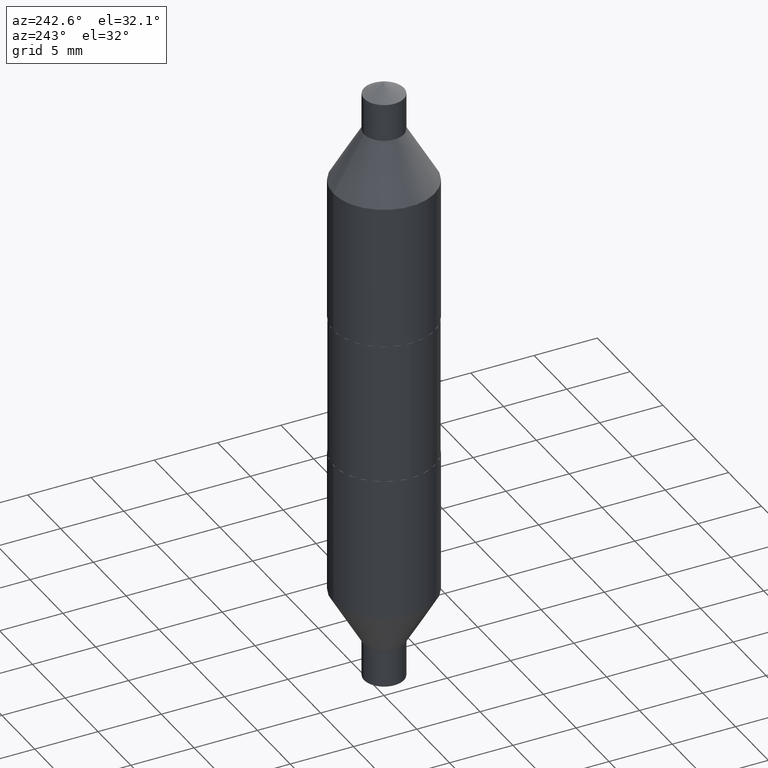
[diagram: clean part render]
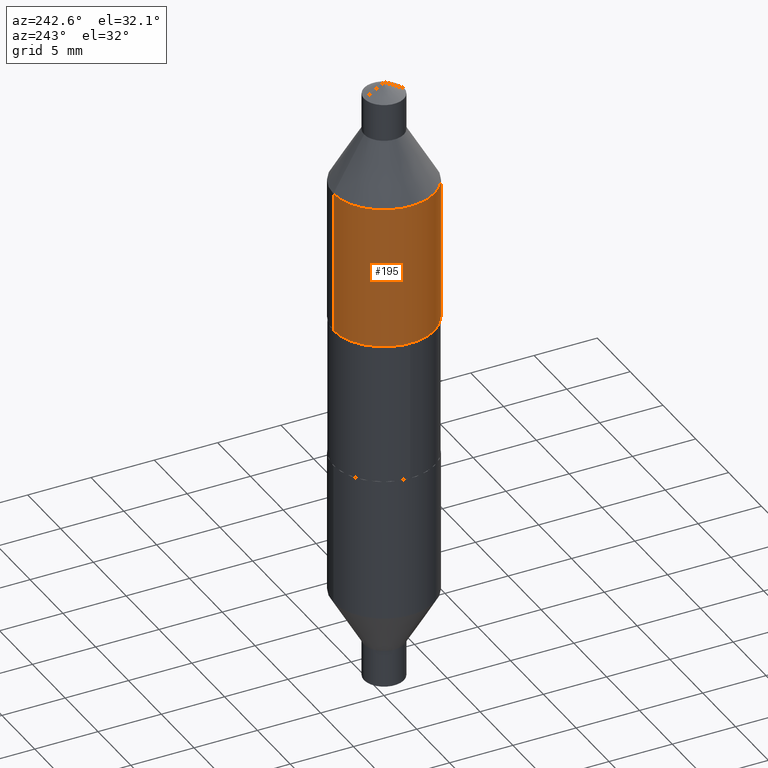
[diagram: same view with one face highlighted and labeled with its STEP entity id]
A machine part, auxiliary view. The second image highlights one B-rep face of the part: STEP entity #195.
In plain terms, the highlighted cylindrical surface (partial cylindrical patch) has radius 4.0005 mm, axis along (0, -0, -1).
Its self-contained STEP definition (entity closure, byte-faithful):
#5 = LINE ( 'NONE', #665, #392 ) ;
#19 = EDGE_CURVE ( 'NONE', #595, #509, #673, .T. ) ;
#21 = CARTESIAN_POINT ( 'NONE',  ( -1.634634905970335902E-29, 2.317425452117836237E-15, 0.6660891478771698848 ) ) ;
#59 = CARTESIAN_POINT ( 'NONE',  ( -1.099816621735592016E-15, -0.1574999999999992517, 0.2200000000000005562 ) ) ;
#97 = CARTESIAN_POINT ( 'NONE',  ( 1.080528434649005327E-15, 0.1575000000000007505, 0.2199999999999994738 ) ) ;
#99 = EDGE_CURVE ( 'NONE', #236, #294, #519, .T. ) ;
#115 = AXIS2_PLACEMENT_3D ( 'NONE', #582, #533, #510 ) ;
#120 = DIRECTION ( 'NONE',  ( -6.982962677686264344E-15, -1.000000000000000000, 3.469013325287952504E-15 ) ) ;
#134 = ORIENTED_EDGE ( 'NONE', *, *, #599, .F. ) ;
#195 = ADVANCED_FACE ( 'NONE', ( #423 ), #305, .T. ) ;
#236 = VERTEX_POINT ( 'NONE', #280 ) ;
#280 = CARTESIAN_POINT ( 'NONE',  ( 1.080528434649010849E-15, 0.1575000000000023603, 0.6660891478771693297 ) ) ;
#287 = EDGE_CURVE ( 'NONE', #236, #595, #5, .T. ) ;
#294 = VERTEX_POINT ( 'NONE', #658 ) ;
#302 = CARTESIAN_POINT ( 'NONE',  ( -1.099816621735592411E-15, -0.1574999999999992795, 0.2200000000000005285 ) ) ;
#305 = CYLINDRICAL_SURFACE ( 'NONE', #474, 0.1575000000000000289 ) ;
#311 = DIRECTION ( 'NONE',  ( 2.458324247133584790E-29, -3.473071615718708644E-15, -1.000000000000000000 ) ) ;
#339 = ORIENTED_EDGE ( 'NONE', *, *, #99, .F. ) ;
#341 = DIRECTION ( 'NONE',  ( -2.458324247133585070E-29, 3.473071615718708250E-15, 1.000000000000000000 ) ) ;
#360 = CARTESIAN_POINT ( 'NONE',  ( -5.380031373607299336E-30, 7.681258945454920400E-16, 0.2199999999999999734 ) ) ;
#392 = VECTOR ( 'NONE', #542, 39.37007874015748143 ) ;
#415 = VECTOR ( 'NONE', #311, 39.37007874015748143 ) ;
#423 = FACE_OUTER_BOUND ( 'NONE', #572, .T. ) ;
#449 = ORIENTED_EDGE ( 'NONE', *, *, #287, .T. ) ;
#474 = AXIS2_PLACEMENT_3D ( 'NONE', #360, #574, #520 ) ;
#509 = VERTEX_POINT ( 'NONE', #59 ) ;
#510 = DIRECTION ( 'NONE',  ( -6.982962677686264344E-15, -1.000000000000000000, 3.469013325287953293E-15 ) ) ;
#519 = CIRCLE ( 'NONE', #701, 0.1575000000000000289 ) ;
#520 = DIRECTION ( 'NONE',  ( -6.982962677686264344E-15, -1.000000000000000000, 3.469013325287952504E-15 ) ) ;
#533 = DIRECTION ( 'NONE',  ( -2.458324247133585070E-29, 3.473071615718708250E-15, 1.000000000000000000 ) ) ;
#542 = DIRECTION ( 'NONE',  ( 2.458324247133584790E-29, -3.473071615718708644E-15, -1.000000000000000000 ) ) ;
#543 = ORIENTED_EDGE ( 'NONE', *, *, #19, .T. ) ;
#572 = EDGE_LOOP ( 'NONE', ( #339, #449, #543, #134 ) ) ;
#574 = DIRECTION ( 'NONE',  ( 2.458324247133585070E-29, -3.473071615718708250E-15, -1.000000000000000000 ) ) ;
#582 = CARTESIAN_POINT ( 'NONE',  ( -5.380031373607300737E-30, 7.681258945454921386E-16, 0.2200000000000000011 ) ) ;
#595 = VERTEX_POINT ( 'NONE', #97 ) ;
#599 = EDGE_CURVE ( 'NONE', #294, #509, #637, .T. ) ;
#637 = LINE ( 'NONE', #302, #415 ) ;
#658 = CARTESIAN_POINT ( 'NONE',  ( -1.099816621735603257E-15, -0.1574999999999976974, 0.6660891478771703289 ) ) ;
#665 = CARTESIAN_POINT ( 'NONE',  ( 1.080528434649011046E-15, 0.1575000000000007783, 0.2199999999999994182 ) ) ;
#673 = CIRCLE ( 'NONE', #115, 0.1575000000000000011 ) ;
#701 = AXIS2_PLACEMENT_3D ( 'NONE', #21, #341, #120 ) ;